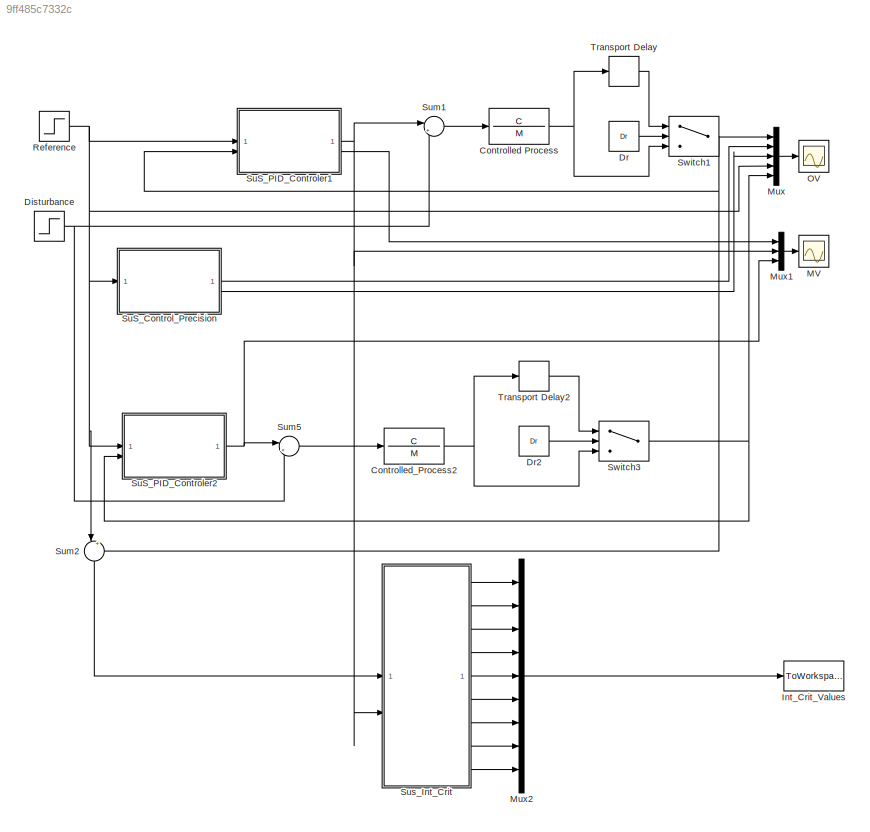
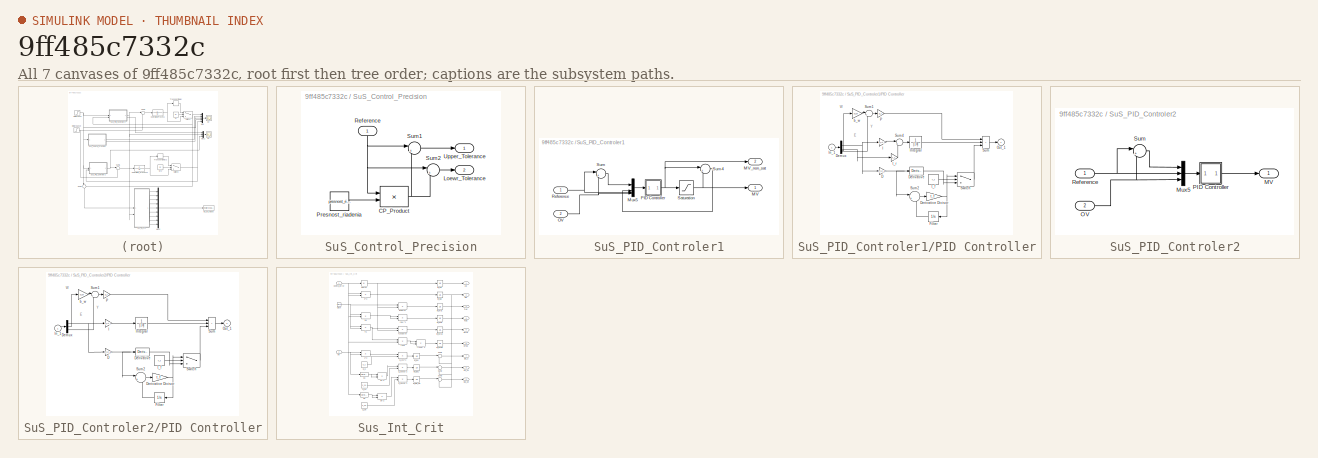
[diagram: thumbnail index - all 7 canvases of the model, root first then tree order]
MODEL slx_9ff485c7332c
KIND model
CONFIG AbsTol = auto
CONFIG EnableMultiTasking = on
CONFIG FixedStep = ptv_sim_step
CONFIG MaxStep = auto
CONFIG MinStep = auto
CONFIG RelTol = 1e-3
CONFIG SampleTimeConstraint = Unconstrained
CONFIG SolverName = ode4
CONFIG StartTime = 0.0
CONFIG StopTime = cas_simulacie
BLOCK [TransferFcn] Controlled Process
  Denominator = M
  Numerator = C
BLOCK [TransferFcn] Controlled_Process2
  Denominator = M
  Numerator = C
BLOCK [Step] Disturbance
  After = R_nova
  Before = R_povodna
  SampleTime = 0
  Time = R_cas_zmeny
BLOCK [Constant] Dr
  Value = Dr
BLOCK [Constant] Dr2
  Value = Dr
BLOCK [ToWorkspace] Int_Crit_Values
  MaxDataPoints = 1
  SampleTime = -1
  VariableName = ise_iae
BLOCK [Scope] MV
  DataLogging = on
  DataLoggingDecimateData = on
  DataLoggingDecimation = 1
  DataLoggingSaveFormat = Array
  DataLoggingVariableName = akcnavel
  Floating = off
  GraphicalSettings = {"GraphicalSettings":{"LegacySettings":true,"Style":{"Style":{"MinimizeControls":"false","PlotType":"Auto"}}}}
  LayoutDimensionsString = [1 1]
  NumInputPorts = 1
  WasSavedAsWebScope = on
BLOCK [Mux] Mux
  DisplayOption = bar
  Inputs = 5
BLOCK [Mux] Mux1
  DisplayOption = bar
  Inputs = 3
BLOCK [Mux] Mux2
  DisplayOption = bar
  Inputs = 9
BLOCK [Scope] OV
  DataLogging = on
  DataLoggingDecimateData = on
  DataLoggingDecimation = 1
  DataLoggingSaveFormat = Array
  DataLoggingVariableName = sim_data
  Floating = off
  GraphicalSettings = {"GraphicalSettings":{"LegacySettings":true,"Style":{"Style":{"MinimizeControls":"false","PlotType":"Auto"}}}}
  LayoutDimensionsString = [1 1]
  NumInputPorts = 1
  TimeSpan = 50
  WasSavedAsWebScope = on
BLOCK [Step] Reference
  After = W_nova
  Before = W_povodna
  SampleTime = 0
  Time = W_cas_zmeny
BLOCK [SubSystem] SuS_Control_Precision
BLOCK [Product] SuS_Control_Precision/CP_Product
  OutDataTypeStr = Inherit: Same as first input
  SaturateOnIntegerOverflow = on
BLOCK [Outport] SuS_Control_Precision/Loewr_Tolerance
  Port = 2
BLOCK [Constant] SuS_Control_Precision/Presnost_riadenia
  Value = presnost_riadenia
BLOCK [Inport] SuS_Control_Precision/Reference
  NameLocation = right
BLOCK [Sum] SuS_Control_Precision/Sum1
  Inputs = |++
  SaturateOnIntegerOverflow = on
BLOCK [Sum] SuS_Control_Precision/Sum2
  Inputs = |+-
  SaturateOnIntegerOverflow = on
BLOCK [Outport] SuS_Control_Precision/Upper_Tolerance
BLOCK [SubSystem] SuS_PID_Controler1
BLOCK [Outport] SuS_PID_Controler1/MV
BLOCK [Outport] SuS_PID_Controler1/MV_non_sat
  Port = 2
BLOCK [Mux] SuS_PID_Controler1/Mux5
  DisplayOption = bar
BLOCK [Inport] SuS_PID_Controler1/OV
  Port = 2
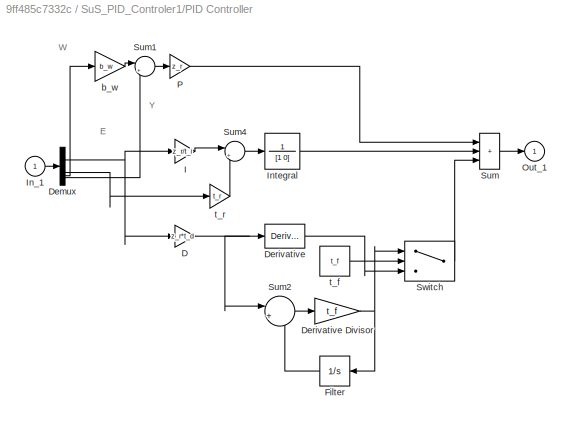
BLOCK [SubSystem] SuS_PID_Controler1/PID Controller
  AncestorBlock = simulink_extras/Additional\nLinear/PID Controller
  LibrarySourceBlock = simulink_extras/Additional\nLinear/PID Controller
BLOCK [Gain] SuS_PID_Controler1/PID Controller/D
  Gain = z_r*t_d
  OutDataTypeStr = Inherit: Same as input
  ParamDataTypeStr = Inherit: Same as input
  SaturateOnIntegerOverflow = on
BLOCK [Demux] SuS_PID_Controler1/PID Controller/Demux
  DisplayOption = none
BLOCK [Derivative] SuS_PID_Controler1/PID Controller/Derivative
BLOCK [Gain] SuS_PID_Controler1/PID Controller/Derivative Divisor
  Gain = t_f
  OutDataTypeStr = Inherit: Same as input
  ParamDataTypeStr = Inherit: Same as input
  SaturateOnIntegerOverflow = on
BLOCK [Integrator] SuS_PID_Controler1/PID Controller/Filter
BLOCK [Gain] SuS_PID_Controler1/PID Controller/I
  Gain = z_r/t_i
  OutDataTypeStr = Inherit: Same as input
  ParamDataTypeStr = Inherit: Same as input
  SaturateOnIntegerOverflow = on
BLOCK [Inport] SuS_PID_Controler1/PID Controller/In_1
BLOCK [TransferFcn] SuS_PID_Controler1/PID Controller/Integral
  Denominator = [1 0]
  Numerator = 1
BLOCK [Outport] SuS_PID_Controler1/PID Controller/Out_1
  InitialOutput = 0
BLOCK [Gain] SuS_PID_Controler1/PID Controller/P
  Gain = z_r
  OutDataTypeStr = Inherit: Same as input
  ParamDataTypeStr = Inherit: Same as input
  SaturateOnIntegerOverflow = on
BLOCK [Sum] SuS_PID_Controler1/PID Controller/Sum
  IconShape = rectangular
  InputSameDT = on
  Inputs = +++
  OutDataTypeStr = Inherit: Same as first input
  SaturateOnIntegerOverflow = on
BLOCK [Sum] SuS_PID_Controler1/PID Controller/Sum1
  Inputs = |+-
  SaturateOnIntegerOverflow = on
BLOCK [Sum] SuS_PID_Controler1/PID Controller/Sum2
  InputSameDT = on
  Inputs = |+-
  OutDataTypeStr = Inherit: Same as first input
  SaturateOnIntegerOverflow = on
BLOCK [Sum] SuS_PID_Controler1/PID Controller/Sum4
  Inputs = |+-
  SaturateOnIntegerOverflow = on
BLOCK [Switch] SuS_PID_Controler1/PID Controller/Switch
  Criteria = u2 > Threshold
  InputSameDT = off
  SaturateOnIntegerOverflow = off
BLOCK [Gain] SuS_PID_Controler1/PID Controller/b_w
  Gain = b_w
  OutDataTypeStr = Inherit: Same as input
  ParamDataTypeStr = Inherit: Same as input
  SaturateOnIntegerOverflow = on
BLOCK [Constant] SuS_PID_Controler1/PID Controller/t_f
  Value = t_f
BLOCK [Gain] SuS_PID_Controler1/PID Controller/t_r
  Gain = t_r
  OutDataTypeStr = Inherit: Same as input
  ParamDataTypeStr = Inherit: Same as input
  SaturateOnIntegerOverflow = on
BLOCK [Inport] SuS_PID_Controler1/Reference
BLOCK [Saturate] SuS_PID_Controler1/Saturation
  LowerLimit = U_dolne_obmedzenie
  UpperLimit = U_horne_obmedzenie
BLOCK [Sum] SuS_PID_Controler1/Sum
  Inputs = |+-
  SaturateOnIntegerOverflow = on
BLOCK [Sum] SuS_PID_Controler1/Sum4
  Inputs = |+-
  SaturateOnIntegerOverflow = on
BLOCK [SubSystem] SuS_PID_Controler2
BLOCK [Outport] SuS_PID_Controler2/MV
BLOCK [Mux] SuS_PID_Controler2/Mux5
  DisplayOption = bar
  Inputs = 3
BLOCK [Inport] SuS_PID_Controler2/OV
  Port = 2
BLOCK [SubSystem] SuS_PID_Controler2/PID Controller
  AncestorBlock = simulink_extras/Additional\nLinear/PID Controller
  LibrarySourceBlock = simulink_extras/Additional\nLinear/PID Controller
BLOCK [Gain] SuS_PID_Controler2/PID Controller/D
  Gain = z_r*t_d
  OutDataTypeStr = Inherit: Same as input
  ParamDataTypeStr = Inherit: Same as input
  SaturateOnIntegerOverflow = on
BLOCK [Demux] SuS_PID_Controler2/PID Controller/Demux
  DisplayOption = none
  Outputs = 3
BLOCK [Derivative] SuS_PID_Controler2/PID Controller/Derivative
BLOCK [Gain] SuS_PID_Controler2/PID Controller/Derivative Divisor
  Gain = t_f
  OutDataTypeStr = Inherit: Same as input
  ParamDataTypeStr = Inherit: Same as input
  SaturateOnIntegerOverflow = on
BLOCK [Integrator] SuS_PID_Controler2/PID Controller/Filter
BLOCK [Gain] SuS_PID_Controler2/PID Controller/I
  Gain = z_r/t_i
  OutDataTypeStr = Inherit: Same as input
  ParamDataTypeStr = Inherit: Same as input
  SaturateOnIntegerOverflow = on
BLOCK [Inport] SuS_PID_Controler2/PID Controller/In_1
BLOCK [TransferFcn] SuS_PID_Controler2/PID Controller/Integral
  Denominator = [1 0]
  Numerator = 1
BLOCK [Outport] SuS_PID_Controler2/PID Controller/Out_1
  InitialOutput = 0
BLOCK [Gain] SuS_PID_Controler2/PID Controller/P
  Gain = z_r
  OutDataTypeStr = Inherit: Same as input
  ParamDataTypeStr = Inherit: Same as input
  SaturateOnIntegerOverflow = on
BLOCK [Sum] SuS_PID_Controler2/PID Controller/Sum
  IconShape = rectangular
  InputSameDT = on
  Inputs = +++
  OutDataTypeStr = Inherit: Same as first input
  SaturateOnIntegerOverflow = on
BLOCK [Sum] SuS_PID_Controler2/PID Controller/Sum1
  Inputs = |+-
  SaturateOnIntegerOverflow = on
BLOCK [Sum] SuS_PID_Controler2/PID Controller/Sum2
  InputSameDT = on
  Inputs = |+-
  OutDataTypeStr = Inherit: Same as first input
  SaturateOnIntegerOverflow = on
BLOCK [Switch] SuS_PID_Controler2/PID Controller/Switch
  Criteria = u2 > Threshold
  InputSameDT = off
  SaturateOnIntegerOverflow = off
BLOCK [Gain] SuS_PID_Controler2/PID Controller/b_w
  Gain = b_w
  OutDataTypeStr = Inherit: Same as input
  ParamDataTypeStr = Inherit: Same as input
  SaturateOnIntegerOverflow = on
BLOCK [Constant] SuS_PID_Controler2/PID Controller/t_f
  Value = t_f
BLOCK [Inport] SuS_PID_Controler2/Reference
BLOCK [Sum] SuS_PID_Controler2/Sum
  Inputs = |+-
  SaturateOnIntegerOverflow = on
BLOCK [Sum] Sum1
  Inputs = |++
  SaturateOnIntegerOverflow = on
BLOCK [Sum] Sum2
  Inputs = |+-
  NameLocation = left
  SaturateOnIntegerOverflow = on
BLOCK [Sum] Sum5
  Inputs = |++
  SaturateOnIntegerOverflow = on
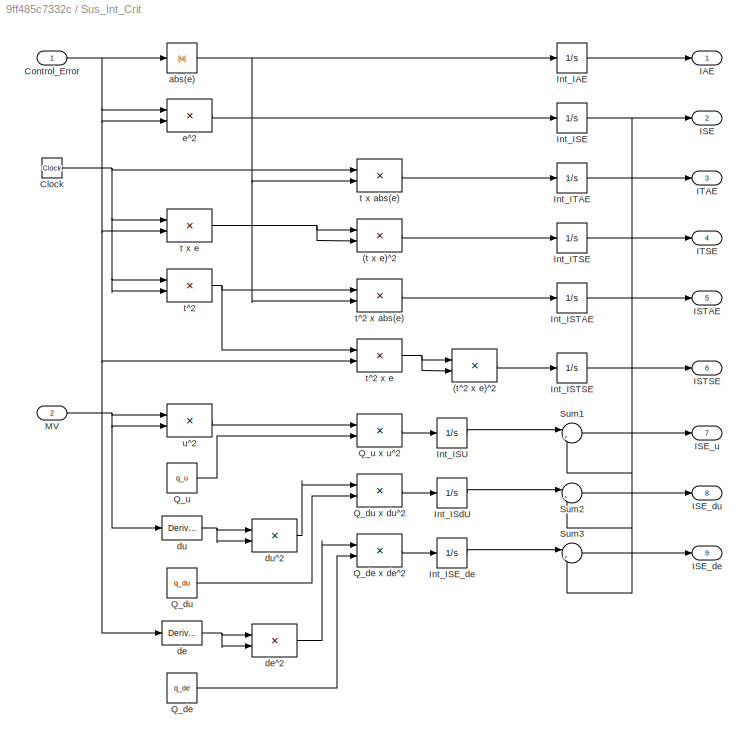
BLOCK [SubSystem] Sus_Int_Crit
BLOCK [Product] Sus_Int_Crit/(t x e)^2
  OutDataTypeStr = Inherit: Same as first input
  SaturateOnIntegerOverflow = on
BLOCK [Product] Sus_Int_Crit/(t^2 x e)^2
  OutDataTypeStr = Inherit: Same as first input
  SaturateOnIntegerOverflow = on
BLOCK [Clock] Sus_Int_Crit/Clock
BLOCK [Inport] Sus_Int_Crit/Control_Error
BLOCK [Outport] Sus_Int_Crit/IAE
BLOCK [Outport] Sus_Int_Crit/ISE
  Port = 2
BLOCK [Outport] Sus_Int_Crit/ISE_de
  Port = 9
BLOCK [Outport] Sus_Int_Crit/ISE_du
  Port = 8
BLOCK [Outport] Sus_Int_Crit/ISE_u
  Port = 7
BLOCK [Outport] Sus_Int_Crit/ISTAE
  Port = 5
BLOCK [Outport] Sus_Int_Crit/ISTSE
  Port = 6
BLOCK [Outport] Sus_Int_Crit/ITAE
  Port = 3
BLOCK [Outport] Sus_Int_Crit/ITSE
  Port = 4
BLOCK [Integrator] Sus_Int_Crit/Int_IAE
BLOCK [Integrator] Sus_Int_Crit/Int_ISE
BLOCK [Integrator] Sus_Int_Crit/Int_ISE_de
BLOCK [Integrator] Sus_Int_Crit/Int_ISTAE
BLOCK [Integrator] Sus_Int_Crit/Int_ISTSE
BLOCK [Integrator] Sus_Int_Crit/Int_ISU
BLOCK [Integrator] Sus_Int_Crit/Int_ISdU
BLOCK [Integrator] Sus_Int_Crit/Int_ITAE
BLOCK [Integrator] Sus_Int_Crit/Int_ITSE
BLOCK [Inport] Sus_Int_Crit/MV
  Port = 2
BLOCK [Constant] Sus_Int_Crit/Q_de
  Value = q_de
BLOCK [Product] Sus_Int_Crit/Q_de x de^2
  OutDataTypeStr = Inherit: Same as first input
  SaturateOnIntegerOverflow = on
BLOCK [Constant] Sus_Int_Crit/Q_du
  Value = q_du
BLOCK [Product] Sus_Int_Crit/Q_du x du^2
  OutDataTypeStr = Inherit: Same as first input
  SaturateOnIntegerOverflow = on
BLOCK [Constant] Sus_Int_Crit/Q_u
  Value = q_u
BLOCK [Product] Sus_Int_Crit/Q_u x u^2
  OutDataTypeStr = Inherit: Same as first input
  SaturateOnIntegerOverflow = on
BLOCK [Sum] Sus_Int_Crit/Sum1
  Inputs = |++
  SaturateOnIntegerOverflow = on
BLOCK [Sum] Sus_Int_Crit/Sum2
  Inputs = |++
  SaturateOnIntegerOverflow = on
BLOCK [Sum] Sus_Int_Crit/Sum3
  Inputs = |++
  SaturateOnIntegerOverflow = on
BLOCK [Abs] Sus_Int_Crit/abs(e)
BLOCK [Derivative] Sus_Int_Crit/de
BLOCK [Product] Sus_Int_Crit/de^2
  OutDataTypeStr = Inherit: Same as first input
  SaturateOnIntegerOverflow = on
BLOCK [Derivative] Sus_Int_Crit/du
BLOCK [Product] Sus_Int_Crit/du^2
  OutDataTypeStr = Inherit: Same as first input
  SaturateOnIntegerOverflow = on
BLOCK [Product] Sus_Int_Crit/e^2
  OutDataTypeStr = Inherit: Same as first input
  SaturateOnIntegerOverflow = on
BLOCK [Product] Sus_Int_Crit/t x abs(e)
  OutDataTypeStr = Inherit: Same as first input
  SaturateOnIntegerOverflow = on
BLOCK [Product] Sus_Int_Crit/t x e
  OutDataTypeStr = Inherit: Same as first input
  SaturateOnIntegerOverflow = on
BLOCK [Product] Sus_Int_Crit/t^2
  OutDataTypeStr = Inherit: Same as first input
  SaturateOnIntegerOverflow = on
BLOCK [Product] Sus_Int_Crit/t^2 x abs(e)
  OutDataTypeStr = Inherit: Same as first input
  SaturateOnIntegerOverflow = on
BLOCK [Product] Sus_Int_Crit/t^2 x e
  OutDataTypeStr = Inherit: Same as first input
  SaturateOnIntegerOverflow = on
BLOCK [Product] Sus_Int_Crit/u^2
  OutDataTypeStr = Inherit: Same as first input
  SaturateOnIntegerOverflow = on
BLOCK [Switch] Switch1
  Criteria = u2 > Threshold
  InputSameDT = off
  SaturateOnIntegerOverflow = off
BLOCK [Switch] Switch3
  Criteria = u2 > Threshold
  InputSameDT = off
  SaturateOnIntegerOverflow = off
BLOCK [TransportDelay] Transport Delay
  DelayTime = Dr
BLOCK [TransportDelay] Transport Delay2
  DelayTime = Dr
ANNOTATION SuS_PID_Controler1/PID Controller: E
ANNOTATION SuS_PID_Controler1/PID Controller: W
ANNOTATION SuS_PID_Controler1/PID Controller: Y
ANNOTATION SuS_PID_Controler2/PID Controller: E
ANNOTATION SuS_PID_Controler2/PID Controller: W
ANNOTATION SuS_PID_Controler2/PID Controller: Y
NET Controlled Process:1 -> Switch1:3, Transport Delay:1
NET Controlled_Process2:1 -> Switch3:3, Transport Delay2:1
NET Disturbance:1 -> Sum1:2, Sum5:2
LINE Dr2:1 -> Switch3:2
LINE Dr:1 -> Switch1:2
LINE Mux1:1 -> MV:1
LINE Mux2:1 -> Int_Crit_Values:1
LINE Mux:1 -> OV:1
NET Reference:1 -> Mux:4, SuS_Control_Precision:1, SuS_PID_Controler1:1, SuS_PID_Controler2:1, Sum2:1
NET SuS_Control_Precision/CP_Product:1 -> SuS_Control_Precision/Sum1:2, SuS_Control_Precision/Sum2:2
LINE SuS_Control_Precision/Presnost_riadenia:1 -> SuS_Control_Precision/CP_Product:2
NET SuS_Control_Precision/Reference:1 -> SuS_Control_Precision/CP_Product:1, SuS_Control_Precision/Sum1:1, SuS_Control_Precision/Sum2:1
LINE SuS_Control_Precision/Sum1:1 -> SuS_Control_Precision/Upper_Tolerance:1
LINE SuS_Control_Precision/Sum2:1 -> SuS_Control_Precision/Loewr_Tolerance:1
LINE SuS_Control_Precision:1 -> Mux:2
LINE SuS_Control_Precision:2 -> Mux:3
LINE SuS_PID_Controler1/Mux5:1 -> SuS_PID_Controler1/PID Controller:1
NET SuS_PID_Controler1/OV:1 -> SuS_PID_Controler1/Mux5:4, SuS_PID_Controler1/Sum:2
NET SuS_PID_Controler1/PID Controller:1 -> SuS_PID_Controler1/MV_non_sat:1, SuS_PID_Controler1/Saturation:1, SuS_PID_Controler1/Sum4:1
NET SuS_PID_Controler1/Reference:1 -> SuS_PID_Controler1/Mux5:3, SuS_PID_Controler1/Sum:1
NET SuS_PID_Controler1/Saturation:1 -> SuS_PID_Controler1/MV:1, SuS_PID_Controler1/Sum4:2
LINE SuS_PID_Controler1/Sum4:1 -> SuS_PID_Controler1/Mux5:2
LINE SuS_PID_Controler1/Sum:1 -> SuS_PID_Controler1/Mux5:1
NET SuS_PID_Controler1:1 -> Mux1:2, Sum1:1, Sus_Int_Crit:2
LINE SuS_PID_Controler1:2 -> Mux1:1
LINE SuS_PID_Controler2/Mux5:1 -> SuS_PID_Controler2/PID Controller:1
NET SuS_PID_Controler2/OV:1 -> SuS_PID_Controler2/Mux5:3, SuS_PID_Controler2/Sum:2
LINE SuS_PID_Controler2/PID Controller:1 -> SuS_PID_Controler2/MV:1
NET SuS_PID_Controler2/Reference:1 -> SuS_PID_Controler2/Mux5:2, SuS_PID_Controler2/Sum:1
LINE SuS_PID_Controler2/Sum:1 -> SuS_PID_Controler2/Mux5:1
NET SuS_PID_Controler2:1 -> Mux1:3, Sum5:1
LINE Sum1:1 -> Controlled Process:1
LINE Sum2:1 -> Sus_Int_Crit:1
LINE Sum5:1 -> Controlled_Process2:1
LINE Sus_Int_Crit/(t x e)^2:1 -> Sus_Int_Crit/Int_ITSE:1
LINE Sus_Int_Crit/(t^2 x e)^2:1 -> Sus_Int_Crit/Int_ISTSE:1
NET Sus_Int_Crit/Clock:1 -> Sus_Int_Crit/t x abs(e):1, Sus_Int_Crit/t x e:1, Sus_Int_Crit/t^2:1, Sus_Int_Crit/t^2:2
NET Sus_Int_Crit/Control_Error:1 -> Sus_Int_Crit/abs(e):1, Sus_Int_Crit/de:1, Sus_Int_Crit/e^2:1, Sus_Int_Crit/e^2:2, Sus_Int_Crit/t x e:2, Sus_Int_Crit/t^2 x e:2
LINE Sus_Int_Crit/Int_IAE:1 -> Sus_Int_Crit/IAE:1
NET Sus_Int_Crit/Int_ISE:1 -> Sus_Int_Crit/ISE:1, Sus_Int_Crit/Sum1:2, Sus_Int_Crit/Sum2:2, Sus_Int_Crit/Sum3:2
LINE Sus_Int_Crit/Int_ISE_de:1 -> Sus_Int_Crit/Sum3:1
LINE Sus_Int_Crit/Int_ISTAE:1 -> Sus_Int_Crit/ISTAE:1
LINE Sus_Int_Crit/Int_ISTSE:1 -> Sus_Int_Crit/ISTSE:1
LINE Sus_Int_Crit/Int_ISU:1 -> Sus_Int_Crit/Sum1:1
LINE Sus_Int_Crit/Int_ISdU:1 -> Sus_Int_Crit/Sum2:1
LINE Sus_Int_Crit/Int_ITAE:1 -> Sus_Int_Crit/ITAE:1
LINE Sus_Int_Crit/Int_ITSE:1 -> Sus_Int_Crit/ITSE:1
NET Sus_Int_Crit/MV:1 -> Sus_Int_Crit/du:1, Sus_Int_Crit/u^2:1, Sus_Int_Crit/u^2:2
LINE Sus_Int_Crit/Q_de x de^2:1 -> Sus_Int_Crit/Int_ISE_de:1
LINE Sus_Int_Crit/Q_de:1 -> Sus_Int_Crit/Q_de x de^2:2
LINE Sus_Int_Crit/Q_du x du^2:1 -> Sus_Int_Crit/Int_ISdU:1
LINE Sus_Int_Crit/Q_du:1 -> Sus_Int_Crit/Q_du x du^2:2
LINE Sus_Int_Crit/Q_u x u^2:1 -> Sus_Int_Crit/Int_ISU:1
LINE Sus_Int_Crit/Q_u:1 -> Sus_Int_Crit/Q_u x u^2:2
LINE Sus_Int_Crit/Sum1:1 -> Sus_Int_Crit/ISE_u:1
LINE Sus_Int_Crit/Sum2:1 -> Sus_Int_Crit/ISE_du:1
LINE Sus_Int_Crit/Sum3:1 -> Sus_Int_Crit/ISE_de:1
NET Sus_Int_Crit/abs(e):1 -> Sus_Int_Crit/Int_IAE:1, Sus_Int_Crit/t x abs(e):2, Sus_Int_Crit/t^2 x abs(e):2
NET Sus_Int_Crit/de:1 -> Sus_Int_Crit/de^2:1, Sus_Int_Crit/de^2:2
LINE Sus_Int_Crit/de^2:1 -> Sus_Int_Crit/Q_de x de^2:1
NET Sus_Int_Crit/du:1 -> Sus_Int_Crit/du^2:1, Sus_Int_Crit/du^2:2
LINE Sus_Int_Crit/du^2:1 -> Sus_Int_Crit/Q_du x du^2:1
LINE Sus_Int_Crit/e^2:1 -> Sus_Int_Crit/Int_ISE:1
LINE Sus_Int_Crit/t x abs(e):1 -> Sus_Int_Crit/Int_ITAE:1
NET Sus_Int_Crit/t x e:1 -> Sus_Int_Crit/(t x e)^2:1, Sus_Int_Crit/(t x e)^2:2
LINE Sus_Int_Crit/t^2 x abs(e):1 -> Sus_Int_Crit/Int_ISTAE:1
NET Sus_Int_Crit/t^2 x e:1 -> Sus_Int_Crit/(t^2 x e)^2:1, Sus_Int_Crit/(t^2 x e)^2:2
NET Sus_Int_Crit/t^2:1 -> Sus_Int_Crit/t^2 x abs(e):1, Sus_Int_Crit/t^2 x e:1
LINE Sus_Int_Crit/u^2:1 -> Sus_Int_Crit/Q_u x u^2:1
LINE Sus_Int_Crit:1 -> Mux2:1
LINE Sus_Int_Crit:2 -> Mux2:2
LINE Sus_Int_Crit:3 -> Mux2:3
LINE Sus_Int_Crit:4 -> Mux2:4
LINE Sus_Int_Crit:5 -> Mux2:5
LINE Sus_Int_Crit:6 -> Mux2:6
LINE Sus_Int_Crit:7 -> Mux2:7
LINE Sus_Int_Crit:8 -> Mux2:8
LINE Sus_Int_Crit:9 -> Mux2:9
NET Switch1:1 -> Mux:1, SuS_PID_Controler1:2, Sum2:2
NET Switch3:1 -> Mux:5, SuS_PID_Controler2:2
LINE Transport Delay2:1 -> Switch3:1
LINE Transport Delay:1 -> Switch1:1
note: NET lines group one-source signal fan-out (src -> all destinations, sorted); 1:1 wires keep LINE
